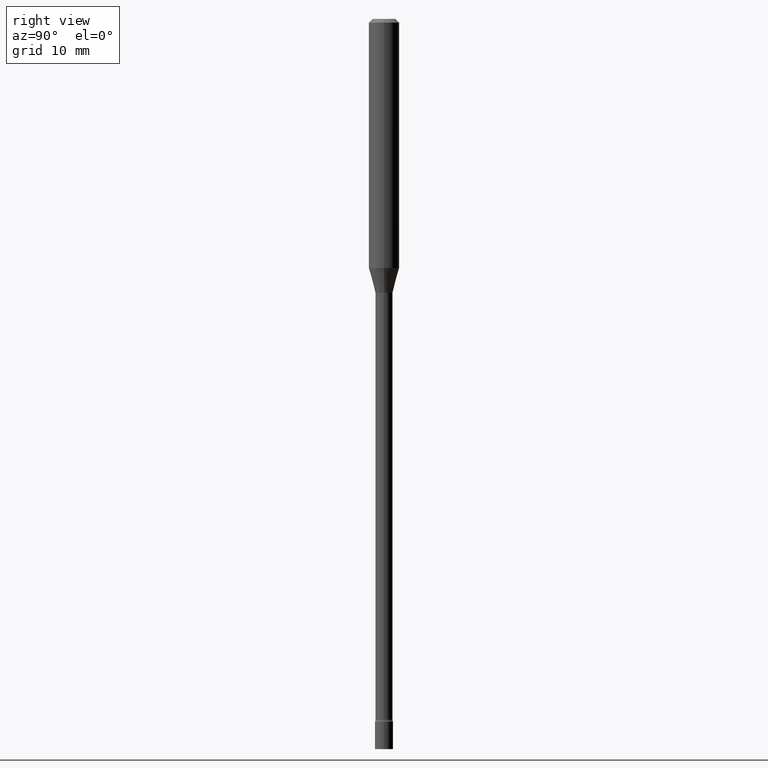
[diagram: clean part render]
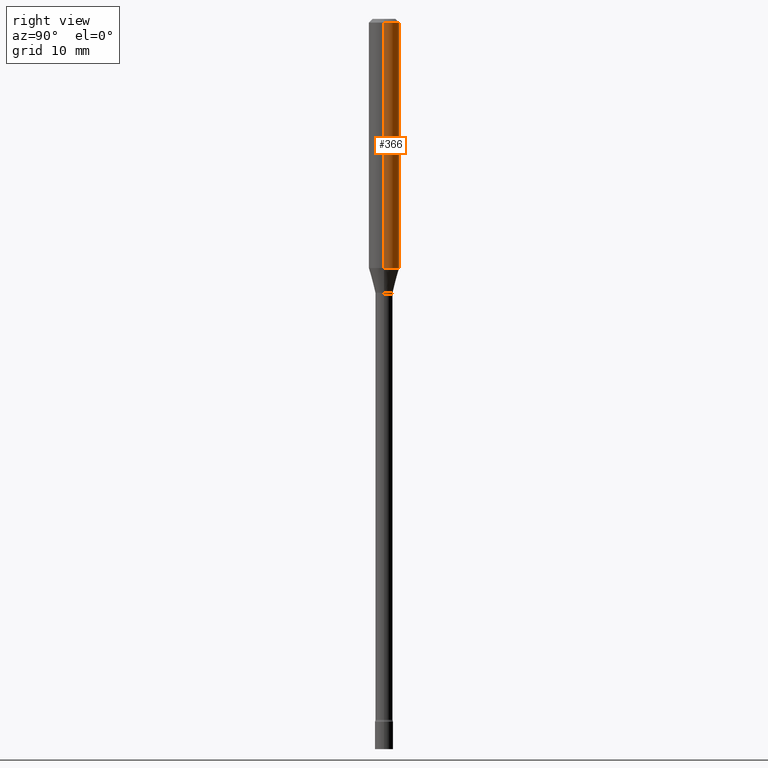
[diagram: same view with one face highlighted and labeled with its STEP entity id]
A machine part, right view. The second image highlights one B-rep face of the part: STEP entity #366.
In plain terms, the highlighted cylindrical surface (edge-blend (fillet) strip) has radius 1.5875 mm, axis along (-0, 0, 1).
Its self-contained STEP definition (entity closure, byte-faithful):
#21 = CIRCLE ( 'NONE', #156, 0.06250000000000000000 ) ;
#33 = CARTESIAN_POINT ( 'NONE',  ( 3.668203209277712094E-31, -5.237222008264728876E-17, -0.01500000000000003067 ) ) ;
#47 = LINE ( 'NONE', #170, #291 ) ;
#77 = DIRECTION ( 'NONE',  ( 1.000000000000000000, -6.982962677686266711E-15, 4.876176775795935793E-29 ) ) ;
#104 = CIRCLE ( 'NONE', #392, 0.06250000000000000000 ) ;
#105 = VECTOR ( 'NONE', #229, 39.37007874015748143 ) ;
#117 = FACE_OUTER_BOUND ( 'NONE', #410, .T. ) ;
#122 = CARTESIAN_POINT ( 'NONE',  ( 0.06250000000000000000, -4.009273661859858601E-15, -1.023301615493748429 ) ) ;
#125 = DIRECTION ( 'NONE',  ( -2.445468806185136597E-29, 3.491481338843145583E-15, 1.000000000000000000 ) ) ;
#145 = EDGE_CURVE ( 'NONE', #334, #339, #104, .T. ) ;
#148 = CARTESIAN_POINT ( 'NONE',  ( -0.06250000000000000000, -1.368516147443494389E-15, -0.01500000000000003067 ) ) ;
#156 = AXIS2_PLACEMENT_3D ( 'NONE', #324, #125, #405 ) ;
#170 = CARTESIAN_POINT ( 'NONE',  ( -0.06250000000000000000, 4.440892098500626162E-16, -3.074334431409316114E-30 ) ) ;
#194 = DIRECTION ( 'NONE',  ( -2.445468806185136597E-29, 3.491481338843145583E-15, 1.000000000000000000 ) ) ;
#198 = AXIS2_PLACEMENT_3D ( 'NONE', #435, #200, #77 ) ;
#200 = DIRECTION ( 'NONE',  ( -2.445468806185136597E-29, 3.491481338843145583E-15, 1.000000000000000000 ) ) ;
#207 = ORIENTED_EDGE ( 'NONE', *, *, #409, .T. ) ;
#229 = DIRECTION ( 'NONE',  ( -2.445468806185136877E-29, 3.491481338843145188E-15, 1.000000000000000000 ) ) ;
#262 = CARTESIAN_POINT ( 'NONE',  ( 0.06250000000000000000, -4.364351673553916694E-16, 3.047610484872459871E-30 ) ) ;
#265 = LINE ( 'NONE', #262, #105 ) ;
#276 = ORIENTED_EDGE ( 'NONE', *, *, #145, .F. ) ;
#291 = VECTOR ( 'NONE', #483, 39.37007874015748143 ) ;
#322 = EDGE_CURVE ( 'NONE', #365, #334, #265, .T. ) ;
#324 = CARTESIAN_POINT ( 'NONE',  ( 2.502452180008818509E-29, -3.572838494504466932E-15, -1.023301615493748429 ) ) ;
#334 = VERTEX_POINT ( 'NONE', #472 ) ;
#339 = VERTEX_POINT ( 'NONE', #148 ) ;
#350 = DIRECTION ( 'NONE',  ( 1.000000000000000000, -6.982962677686266711E-15, 0.000000000000000000 ) ) ;
#352 = ORIENTED_EDGE ( 'NONE', *, *, #406, .T. ) ;
#365 = VERTEX_POINT ( 'NONE', #122 ) ;
#366 = ADVANCED_FACE ( 'NONE', ( #117 ), #440, .T. ) ;
#374 = VERTEX_POINT ( 'NONE', #442 ) ;
#392 = AXIS2_PLACEMENT_3D ( 'NONE', #33, #194, #350 ) ;
#405 = DIRECTION ( 'NONE',  ( 1.000000000000000000, -6.982962677686270655E-15, 0.000000000000000000 ) ) ;
#406 = EDGE_CURVE ( 'NONE', #365, #374, #21, .T. ) ;
#408 = ORIENTED_EDGE ( 'NONE', *, *, #322, .F. ) ;
#409 = EDGE_CURVE ( 'NONE', #374, #339, #47, .T. ) ;
#410 = EDGE_LOOP ( 'NONE', ( #352, #207, #276, #408 ) ) ;
#435 = CARTESIAN_POINT ( 'NONE',  ( 0.000000000000000000, 0.000000000000000000, 0.000000000000000000 ) ) ;
#440 = CYLINDRICAL_SURFACE ( 'NONE', #198, 0.06250000000000000000 ) ;
#442 = CARTESIAN_POINT ( 'NONE',  ( -0.06250000000000000000, -3.128749284654403921E-15, -1.023301615493748429 ) ) ;
#472 = CARTESIAN_POINT ( 'NONE',  ( 0.06250000000000000000, -4.888073874380389458E-16, -0.01500000000000003067 ) ) ;
#483 = DIRECTION ( 'NONE',  ( -2.445468806185136877E-29, 3.491481338843145188E-15, 1.000000000000000000 ) ) ;